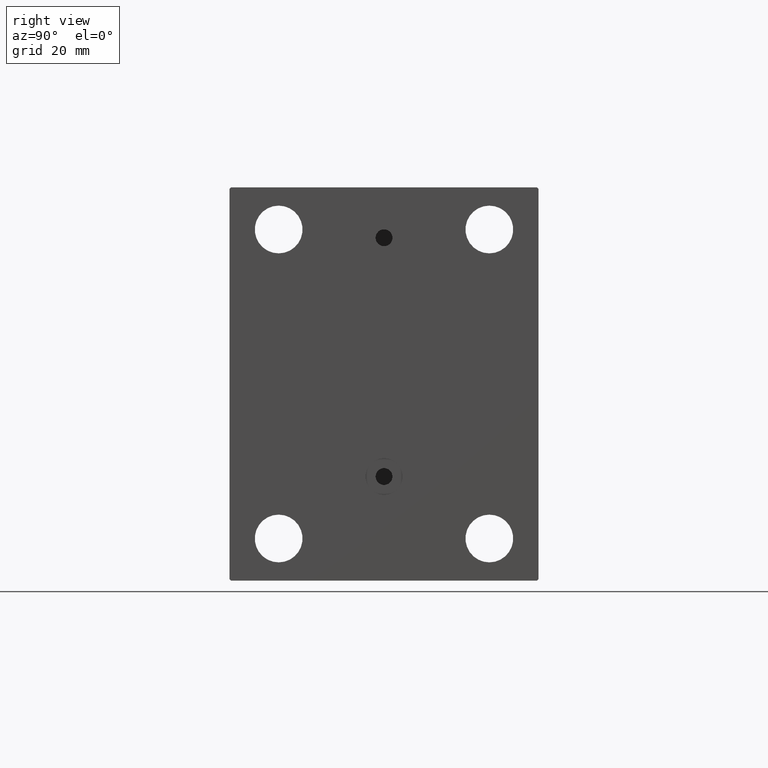
[diagram: clean part render]
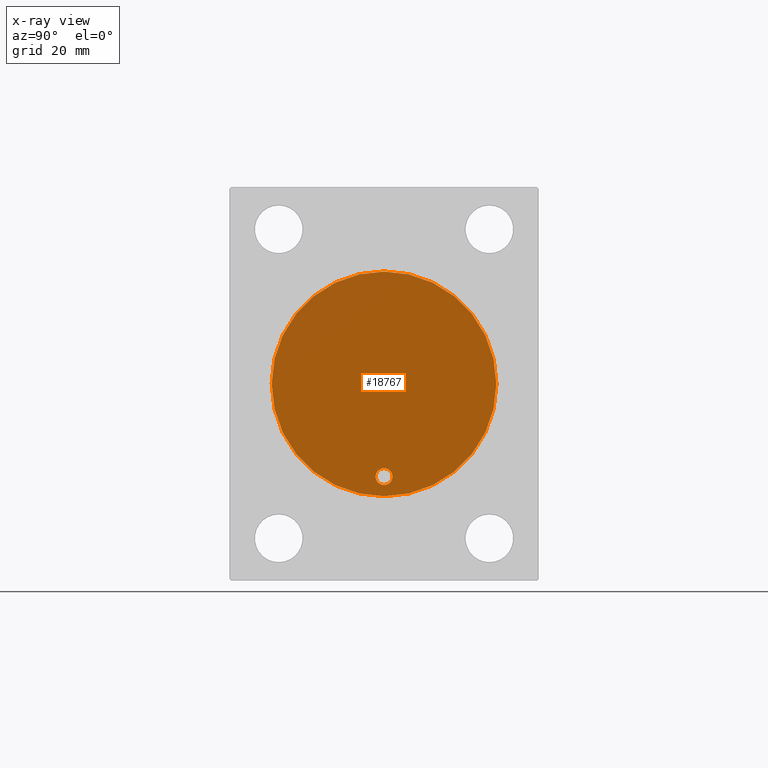
[diagram: x-ray — body ghosted, one internal face saturated and labeled with its STEP entity id]
A machine part, right view, then the same camera in x-ray: the body is ghosted and one INTERNAL B-rep face — a face not visible from any outside direction — is saturated and labeled: STEP entity #18767.
In plain terms, the highlighted planar face has unit normal (-1, 0, 0).
Its self-contained STEP definition (entity closure, byte-faithful):
#650 = CARTESIAN_POINT ( 'NONE',  ( 51.00000000000000000, 0.000000000000000000, 40.00000000000000000 ) ) ;
#1512 = ORIENTED_EDGE ( 'NONE', *, *, #9818, .F. ) ;
#2307 = DIRECTION ( 'NONE',  ( 0.000000000000000000, 0.000000000000000000, 1.000000000000000000 ) ) ;
#3458 = DIRECTION ( 'NONE',  ( 0.000000000000000000, 0.000000000000000000, 1.000000000000000000 ) ) ;
#6959 = CIRCLE ( 'NONE', #12832, 40.00000000000000000 ) ;
#9818 = EDGE_CURVE ( 'NONE', #24627, #31199, #36967, .T. ) ;
#9913 = DIRECTION ( 'NONE',  ( -1.000000000000000000, 0.000000000000000000, 0.000000000000000000 ) ) ;
#10507 = DIRECTION ( 'NONE',  ( 0.000000000000000000, 0.000000000000000000, 1.000000000000000000 ) ) ;
#11598 = AXIS2_PLACEMENT_3D ( 'NONE', #28468, #42985, #10507 ) ;
#12277 = VERTEX_POINT ( 'NONE', #650 ) ;
#12285 = ORIENTED_EDGE ( 'NONE', *, *, #24176, .F. ) ;
#12832 = AXIS2_PLACEMENT_3D ( 'NONE', #37306, #15652, #2307 ) ;
#12935 = DIRECTION ( 'NONE',  ( -1.000000000000000000, 0.000000000000000000, 0.000000000000000000 ) ) ;
#12959 = AXIS2_PLACEMENT_3D ( 'NONE', #33913, #12935, #20308 ) ;
#13574 = CARTESIAN_POINT ( 'NONE',  ( 51.00000000000000000, 4.041334437186266200E-15, -33.00000000000000000 ) ) ;
#14878 = AXIS2_PLACEMENT_3D ( 'NONE', #13574, #28540, #3458 ) ;
#15282 = CIRCLE ( 'NONE', #11598, 40.00000000000000000 ) ;
#15396 = CARTESIAN_POINT ( 'NONE',  ( 51.00000000000000000, 4.408728476930471644E-15, -30.00000000000000000 ) ) ;
#15652 = DIRECTION ( 'NONE',  ( -1.000000000000000000, 0.000000000000000000, 0.000000000000000000 ) ) ;
#16901 = EDGE_LOOP ( 'NONE', ( #43114, #25368 ) ) ;
#18767 = ADVANCED_FACE ( 'NONE', ( #41952, #27426 ), #38258, .T. ) ;
#19957 = EDGE_CURVE ( 'NONE', #36016, #12277, #6959, .T. ) ;
#20308 = DIRECTION ( 'NONE',  ( 0.000000000000000000, 0.000000000000000000, 1.000000000000000000 ) ) ;
#23927 = CARTESIAN_POINT ( 'NONE',  ( 51.00000000000000000, 4.898587196589413026E-15, -40.00000000000000000 ) ) ;
#24176 = EDGE_CURVE ( 'NONE', #31199, #24627, #32114, .T. ) ;
#24627 = VERTEX_POINT ( 'NONE', #32843 ) ;
#25368 = ORIENTED_EDGE ( 'NONE', *, *, #19957, .T. ) ;
#27426 = FACE_OUTER_BOUND ( 'NONE', #16901, .T. ) ;
#28468 = CARTESIAN_POINT ( 'NONE',  ( 51.00000000000000000, 0.000000000000000000, 0.000000000000000000 ) ) ;
#28540 = DIRECTION ( 'NONE',  ( -1.000000000000000000, 0.000000000000000000, 0.000000000000000000 ) ) ;
#31199 = VERTEX_POINT ( 'NONE', #15396 ) ;
#32114 = CIRCLE ( 'NONE', #12959, 3.000000000000002665 ) ;
#32843 = CARTESIAN_POINT ( 'NONE',  ( 51.00000000000000000, 4.041334437186266200E-15, -36.00000000000000711 ) ) ;
#33913 = CARTESIAN_POINT ( 'NONE',  ( 51.00000000000000000, 4.041334437186266200E-15, -33.00000000000000000 ) ) ;
#33955 = EDGE_CURVE ( 'NONE', #12277, #36016, #15282, .T. ) ;
#36016 = VERTEX_POINT ( 'NONE', #23927 ) ;
#36967 = CIRCLE ( 'NONE', #14878, 3.000000000000002665 ) ;
#37306 = CARTESIAN_POINT ( 'NONE',  ( 51.00000000000000000, 0.000000000000000000, 0.000000000000000000 ) ) ;
#38258 = PLANE ( 'NONE',  #38567 ) ;
#38493 = CARTESIAN_POINT ( 'NONE',  ( 51.00000000000000000, 0.000000000000000000, 0.000000000000000000 ) ) ;
#38567 = AXIS2_PLACEMENT_3D ( 'NONE', #38493, #9913, #41498 ) ;
#40683 = EDGE_LOOP ( 'NONE', ( #1512, #12285 ) ) ;
#41498 = DIRECTION ( 'NONE',  ( 0.000000000000000000, 0.000000000000000000, 1.000000000000000000 ) ) ;
#41952 = FACE_BOUND ( 'NONE', #40683, .T. ) ;
#42985 = DIRECTION ( 'NONE',  ( -1.000000000000000000, 0.000000000000000000, 0.000000000000000000 ) ) ;
#43114 = ORIENTED_EDGE ( 'NONE', *, *, #33955, .T. ) ;